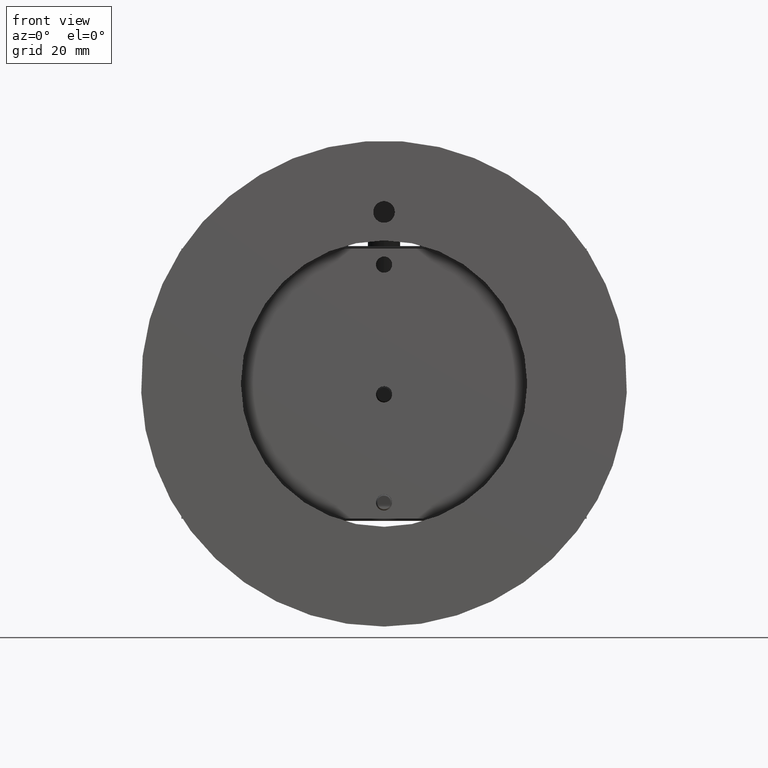
[diagram: clean part render]
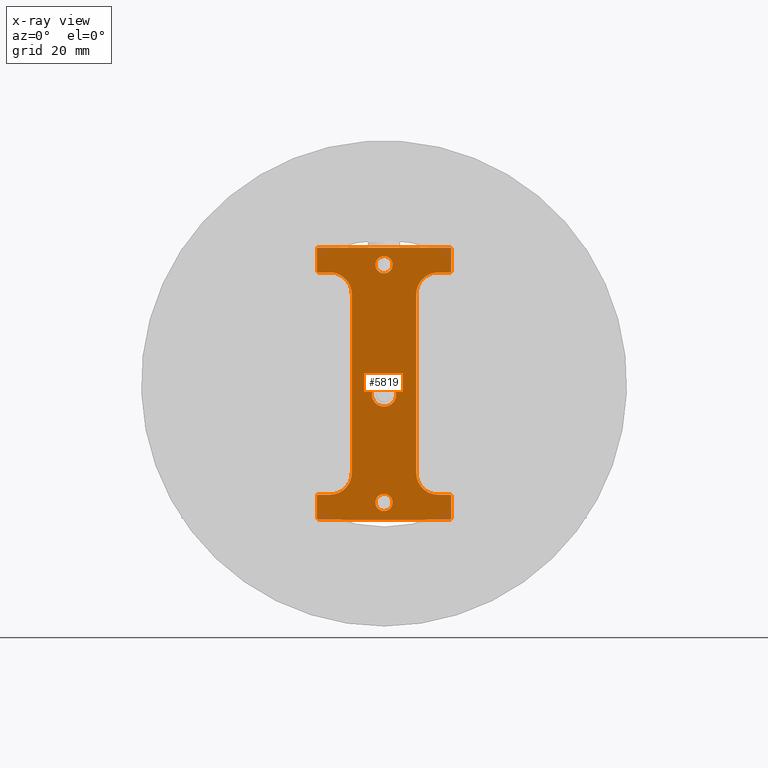
[diagram: x-ray — body ghosted, one internal face saturated and labeled with its STEP entity id]
A machine part, front view, then the same camera in x-ray: the body is ghosted and one INTERNAL B-rep face — a face not visible from any outside direction — is saturated and labeled: STEP entity #5819.
In plain terms, the highlighted planar face has unit normal (0, 1, -0).
Its self-contained STEP definition (entity closure, byte-faithful):
#540=FACE_BOUND('',#1098,.T.);
#541=FACE_BOUND('',#1099,.T.);
#542=FACE_BOUND('',#1100,.T.);
#633=PLANE('',#6202);
#731=FACE_OUTER_BOUND('',#1097,.T.);
#1097=EDGE_LOOP('',(#3971,#3972,#3973,#3974,#3975,#3976,#3977,#3978,#3979,
#3980,#3981,#3982,#3983,#3984,#3985,#3986,#3987,#3988,#3989,#3990,#3991,
#3992,#3993,#3994));
#1098=EDGE_LOOP('',(#3995));
#1099=EDGE_LOOP('',(#3996));
#1100=EDGE_LOOP('',(#3997));
#1556=LINE('',#8540,#1889);
#1557=LINE('',#8544,#1890);
#1558=LINE('',#8548,#1891);
#1559=LINE('',#8552,#1892);
#1560=LINE('',#8556,#1893);
#1561=LINE('',#8560,#1894);
#1562=LINE('',#8564,#1895);
#1563=LINE('',#8568,#1896);
#1564=LINE('',#8572,#1897);
#1565=LINE('',#8576,#1898);
#1566=LINE('',#8580,#1899);
#1567=LINE('',#8583,#1900);
#1889=VECTOR('',#6917,0.0849999999999989);
#1890=VECTOR('',#6920,1.3);
#1891=VECTOR('',#6923,0.084999999999999);
#1892=VECTOR('',#6926,0.16);
#1893=VECTOR('',#6929,0.96);
#1894=VECTOR('',#6932,0.16);
#1895=VECTOR('',#6935,0.0849999999999989);
#1896=VECTOR('',#6938,1.3);
#1897=VECTOR('',#6941,0.0849999999999989);
#1898=VECTOR('',#6944,0.16);
#1899=VECTOR('',#6947,0.96);
#1900=VECTOR('',#6950,0.16);
#2197=CIRCLE('',#6203,0.01);
#2198=CIRCLE('',#6204,0.16);
#2199=CIRCLE('',#6205,0.16);
#2200=CIRCLE('',#6206,0.01);
#2201=CIRCLE('',#6207,0.01);
#2202=CIRCLE('',#6208,0.01);
#2203=CIRCLE('',#6209,0.01);
#2204=CIRCLE('',#6210,0.16);
#2205=CIRCLE('',#6211,0.16);
#2206=CIRCLE('',#6212,0.01);
#2207=CIRCLE('',#6213,0.01);
#2208=CIRCLE('',#6214,0.01);
#2209=CIRCLE('',#6215,0.0885826771653543);
#2210=CIRCLE('',#6216,0.0625);
#2211=CIRCLE('',#6217,0.0625);
#2500=VERTEX_POINT('',#8536);
#2501=VERTEX_POINT('',#8537);
#2502=VERTEX_POINT('',#8539);
#2503=VERTEX_POINT('',#8541);
#2504=VERTEX_POINT('',#8543);
#2505=VERTEX_POINT('',#8545);
#2506=VERTEX_POINT('',#8547);
#2507=VERTEX_POINT('',#8549);
#2508=VERTEX_POINT('',#8551);
#2509=VERTEX_POINT('',#8553);
#2510=VERTEX_POINT('',#8555);
#2511=VERTEX_POINT('',#8557);
#2512=VERTEX_POINT('',#8559);
#2513=VERTEX_POINT('',#8561);
#2514=VERTEX_POINT('',#8563);
#2515=VERTEX_POINT('',#8565);
#2516=VERTEX_POINT('',#8567);
#2517=VERTEX_POINT('',#8569);
#2518=VERTEX_POINT('',#8571);
#2519=VERTEX_POINT('',#8573);
#2520=VERTEX_POINT('',#8575);
#2521=VERTEX_POINT('',#8577);
#2522=VERTEX_POINT('',#8579);
#2523=VERTEX_POINT('',#8581);
#2524=VERTEX_POINT('',#8584);
#2525=VERTEX_POINT('',#8586);
#2526=VERTEX_POINT('',#8588);
#3063=EDGE_CURVE('',#2500,#2501,#2197,.T.);
#3064=EDGE_CURVE('',#2500,#2502,#1556,.F.);
#3065=EDGE_CURVE('',#2502,#2503,#2198,.T.);
#3066=EDGE_CURVE('',#2503,#2504,#1557,.F.);
#3067=EDGE_CURVE('',#2504,#2505,#2199,.T.);
#3068=EDGE_CURVE('',#2505,#2506,#1558,.F.);
#3069=EDGE_CURVE('',#2507,#2506,#2200,.T.);
#3070=EDGE_CURVE('',#2507,#2508,#1559,.F.);
#3071=EDGE_CURVE('',#2508,#2509,#2201,.F.);
#3072=EDGE_CURVE('',#2509,#2510,#1560,.F.);
#3073=EDGE_CURVE('',#2510,#2511,#2202,.F.);
#3074=EDGE_CURVE('',#2511,#2512,#1561,.F.);
#3075=EDGE_CURVE('',#2513,#2512,#2203,.T.);
#3076=EDGE_CURVE('',#2513,#2514,#1562,.F.);
#3077=EDGE_CURVE('',#2514,#2515,#2204,.T.);
#3078=EDGE_CURVE('',#2515,#2516,#1563,.F.);
#3079=EDGE_CURVE('',#2516,#2517,#2205,.T.);
#3080=EDGE_CURVE('',#2517,#2518,#1564,.F.);
#3081=EDGE_CURVE('',#2519,#2518,#2206,.T.);
#3082=EDGE_CURVE('',#2519,#2520,#1565,.F.);
#3083=EDGE_CURVE('',#2520,#2521,#2207,.F.);
#3084=EDGE_CURVE('',#2521,#2522,#1566,.F.);
#3085=EDGE_CURVE('',#2522,#2523,#2208,.F.);
#3086=EDGE_CURVE('',#2523,#2501,#1567,.F.);
#3087=EDGE_CURVE('',#2524,#2524,#2209,.T.);
#3088=EDGE_CURVE('',#2525,#2525,#2210,.T.);
#3089=EDGE_CURVE('',#2526,#2526,#2211,.T.);
#3971=ORIENTED_EDGE('',*,*,#3063,.F.);
#3972=ORIENTED_EDGE('',*,*,#3064,.T.);
#3973=ORIENTED_EDGE('',*,*,#3065,.T.);
#3974=ORIENTED_EDGE('',*,*,#3066,.T.);
#3975=ORIENTED_EDGE('',*,*,#3067,.T.);
#3976=ORIENTED_EDGE('',*,*,#3068,.T.);
#3977=ORIENTED_EDGE('',*,*,#3069,.F.);
#3978=ORIENTED_EDGE('',*,*,#3070,.T.);
#3979=ORIENTED_EDGE('',*,*,#3071,.T.);
#3980=ORIENTED_EDGE('',*,*,#3072,.T.);
#3981=ORIENTED_EDGE('',*,*,#3073,.T.);
#3982=ORIENTED_EDGE('',*,*,#3074,.T.);
#3983=ORIENTED_EDGE('',*,*,#3075,.F.);
#3984=ORIENTED_EDGE('',*,*,#3076,.T.);
#3985=ORIENTED_EDGE('',*,*,#3077,.T.);
#3986=ORIENTED_EDGE('',*,*,#3078,.T.);
#3987=ORIENTED_EDGE('',*,*,#3079,.T.);
#3988=ORIENTED_EDGE('',*,*,#3080,.T.);
#3989=ORIENTED_EDGE('',*,*,#3081,.F.);
#3990=ORIENTED_EDGE('',*,*,#3082,.T.);
#3991=ORIENTED_EDGE('',*,*,#3083,.T.);
#3992=ORIENTED_EDGE('',*,*,#3084,.T.);
#3993=ORIENTED_EDGE('',*,*,#3085,.T.);
#3994=ORIENTED_EDGE('',*,*,#3086,.T.);
#3995=ORIENTED_EDGE('',*,*,#3087,.T.);
#3996=ORIENTED_EDGE('',*,*,#3088,.T.);
#3997=ORIENTED_EDGE('',*,*,#3089,.T.);
#5819=ADVANCED_FACE('',(#731,#540,#541,#542),#633,.F.);
#6202=AXIS2_PLACEMENT_3D('',#8535,#6913,#6914);
#6203=AXIS2_PLACEMENT_3D('',#8538,#6915,#6916);
#6204=AXIS2_PLACEMENT_3D('',#8542,#6918,#6919);
#6205=AXIS2_PLACEMENT_3D('',#8546,#6921,#6922);
#6206=AXIS2_PLACEMENT_3D('',#8550,#6924,#6925);
#6207=AXIS2_PLACEMENT_3D('',#8554,#6927,#6928);
#6208=AXIS2_PLACEMENT_3D('',#8558,#6930,#6931);
#6209=AXIS2_PLACEMENT_3D('',#8562,#6933,#6934);
#6210=AXIS2_PLACEMENT_3D('',#8566,#6936,#6937);
#6211=AXIS2_PLACEMENT_3D('',#8570,#6939,#6940);
#6212=AXIS2_PLACEMENT_3D('',#8574,#6942,#6943);
#6213=AXIS2_PLACEMENT_3D('',#8578,#6945,#6946);
#6214=AXIS2_PLACEMENT_3D('',#8582,#6948,#6949);
#6215=AXIS2_PLACEMENT_3D('',#8585,#6951,#6952);
#6216=AXIS2_PLACEMENT_3D('',#8587,#6953,#6954);
#6217=AXIS2_PLACEMENT_3D('',#8589,#6955,#6956);
#6913=DIRECTION('center_axis',(0.,0.,1.));
#6914=DIRECTION('ref_axis',(1.,0.,0.));
#6915=DIRECTION('center_axis',(0.,0.,1.));
#6916=DIRECTION('ref_axis',(1.,0.,0.));
#6917=DIRECTION('',(5.14230210572103E-16,1.,0.));
#6918=DIRECTION('center_axis',(0.,0.,1.));
#6919=DIRECTION('ref_axis',(1.,0.,0.));
#6920=DIRECTION('',(-1.,0.,0.));
#6921=DIRECTION('center_axis',(0.,0.,1.));
#6922=DIRECTION('ref_axis',(1.,0.,0.));
#6923=DIRECTION('',(0.,-1.,0.));
#6924=DIRECTION('center_axis',(0.,0.,1.));
#6925=DIRECTION('ref_axis',(1.,0.,0.));
#6926=DIRECTION('',(-1.,0.,0.));
#6927=DIRECTION('center_axis',(0.,0.,1.));
#6928=DIRECTION('ref_axis',(1.,0.,0.));
#6929=DIRECTION('',(0.,1.,0.));
#6930=DIRECTION('center_axis',(0.,0.,1.));
#6931=DIRECTION('ref_axis',(1.,0.,0.));
#6932=DIRECTION('',(1.,0.,0.));
#6933=DIRECTION('center_axis',(0.,0.,1.));
#6934=DIRECTION('ref_axis',(1.,0.,0.));
#6935=DIRECTION('',(0.,-1.,0.));
#6936=DIRECTION('center_axis',(0.,0.,1.));
#6937=DIRECTION('ref_axis',(1.,0.,0.));
#6938=DIRECTION('',(1.,0.,0.));
#6939=DIRECTION('center_axis',(0.,0.,1.));
#6940=DIRECTION('ref_axis',(1.,0.,0.));
#6941=DIRECTION('',(0.,1.,0.));
#6942=DIRECTION('center_axis',(0.,0.,1.));
#6943=DIRECTION('ref_axis',(1.,0.,0.));
#6944=DIRECTION('',(1.,0.,0.));
#6945=DIRECTION('center_axis',(0.,0.,1.));
#6946=DIRECTION('ref_axis',(1.,0.,0.));
#6947=DIRECTION('',(1.22364024716212E-16,-1.,0.));
#6948=DIRECTION('center_axis',(0.,0.,1.));
#6949=DIRECTION('ref_axis',(1.,0.,0.));
#6950=DIRECTION('',(-1.,0.,0.));
#6951=DIRECTION('center_axis',(0.,0.,1.));
#6952=DIRECTION('ref_axis',(1.,0.,0.));
#6953=DIRECTION('center_axis',(0.,0.,1.));
#6954=DIRECTION('ref_axis',(1.,0.,0.));
#6955=DIRECTION('center_axis',(0.,0.,1.));
#6956=DIRECTION('ref_axis',(1.,0.,0.));
#8535=CARTESIAN_POINT('Origin',(0.,0.,0.));
#8536=CARTESIAN_POINT('',(0.19,-0.02,0.));
#8537=CARTESIAN_POINT('',(0.18,-0.01,0.));
#8538=CARTESIAN_POINT('Origin',(0.18,-0.02,0.));
#8539=CARTESIAN_POINT('',(0.19,-0.104999999999999,0.));
#8540=CARTESIAN_POINT('',(0.19,-0.104999999999999,0.));
#8541=CARTESIAN_POINT('',(0.350000000000001,-0.265,0.));
#8542=CARTESIAN_POINT('Origin',(0.35,-0.105,0.));
#8543=CARTESIAN_POINT('',(1.65,-0.265,0.));
#8544=CARTESIAN_POINT('',(1.65,-0.265,0.));
#8545=CARTESIAN_POINT('',(1.81,-0.104999999999999,0.));
#8546=CARTESIAN_POINT('Origin',(1.65,-0.105,0.));
#8547=CARTESIAN_POINT('',(1.81,-0.02,0.));
#8548=CARTESIAN_POINT('',(1.81,-0.02,0.));
#8549=CARTESIAN_POINT('',(1.82,-0.01,0.));
#8550=CARTESIAN_POINT('Origin',(1.82,-0.02,0.));
#8551=CARTESIAN_POINT('',(1.98,-0.01,0.));
#8552=CARTESIAN_POINT('',(1.98,-0.01,0.));
#8553=CARTESIAN_POINT('',(1.99,-0.02,0.));
#8554=CARTESIAN_POINT('Origin',(1.98,-0.02,0.));
#8555=CARTESIAN_POINT('',(1.99,-0.98,0.));
#8556=CARTESIAN_POINT('',(1.99,-0.98,0.));
#8557=CARTESIAN_POINT('',(1.98,-0.99,0.));
#8558=CARTESIAN_POINT('Origin',(1.98,-0.98,0.));
#8559=CARTESIAN_POINT('',(1.82,-0.99,0.));
#8560=CARTESIAN_POINT('',(1.82,-0.99,0.));
#8561=CARTESIAN_POINT('',(1.81,-0.98,0.));
#8562=CARTESIAN_POINT('Origin',(1.82,-0.98,0.));
#8563=CARTESIAN_POINT('',(1.81,-0.895000000000001,0.));
#8564=CARTESIAN_POINT('',(1.81,-0.895000000000001,0.));
#8565=CARTESIAN_POINT('',(1.65,-0.735,0.));
#8566=CARTESIAN_POINT('Origin',(1.65,-0.895,0.));
#8567=CARTESIAN_POINT('',(0.350000000000001,-0.735,0.));
#8568=CARTESIAN_POINT('',(0.350000000000001,-0.735,0.));
#8569=CARTESIAN_POINT('',(0.19,-0.895000000000001,0.));
#8570=CARTESIAN_POINT('Origin',(0.35,-0.895,0.));
#8571=CARTESIAN_POINT('',(0.19,-0.98,0.));
#8572=CARTESIAN_POINT('',(0.19,-0.98,0.));
#8573=CARTESIAN_POINT('',(0.18,-0.99,0.));
#8574=CARTESIAN_POINT('Origin',(0.18,-0.98,0.));
#8575=CARTESIAN_POINT('',(0.0200000000000001,-0.99,0.));
#8576=CARTESIAN_POINT('',(0.0200000000000001,-0.99,0.));
#8577=CARTESIAN_POINT('',(0.0100000000000001,-0.98,0.));
#8578=CARTESIAN_POINT('Origin',(0.0200000000000001,-0.98,0.));
#8579=CARTESIAN_POINT('',(0.01,-0.02,0.));
#8580=CARTESIAN_POINT('',(0.01,-0.02,0.));
#8581=CARTESIAN_POINT('',(0.02,-0.01,0.));
#8582=CARTESIAN_POINT('Origin',(0.02,-0.02,0.));
#8583=CARTESIAN_POINT('',(0.18,-0.01,0.));
#8584=CARTESIAN_POINT('',(0.832635433070866,-0.5,0.));
#8585=CARTESIAN_POINT('Origin',(0.92121811023622,-0.5,0.));
#8586=CARTESIAN_POINT('',(0.0713165354330708,-0.5,0.));
#8587=CARTESIAN_POINT('Origin',(0.133816535433071,-0.5,0.));
#8588=CARTESIAN_POINT('',(1.8036,-0.5,0.));
#8589=CARTESIAN_POINT('Origin',(1.8661,-0.5,0.));